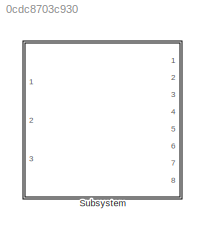
MODEL slx_0cdc8703c930
KIND library
CONFIG AbsTol = auto
CONFIG EnableMultiTasking = off
CONFIG FixedStep = auto
CONFIG MaxStep = auto
CONFIG MinStep = auto
CONFIG RelTol = 1e-3
CONFIG SampleTimeConstraint = Unconstrained
CONFIG SolverName = VariableStepAuto
CONFIG StartTime = 0.0
CONFIG StopTime = 10.0
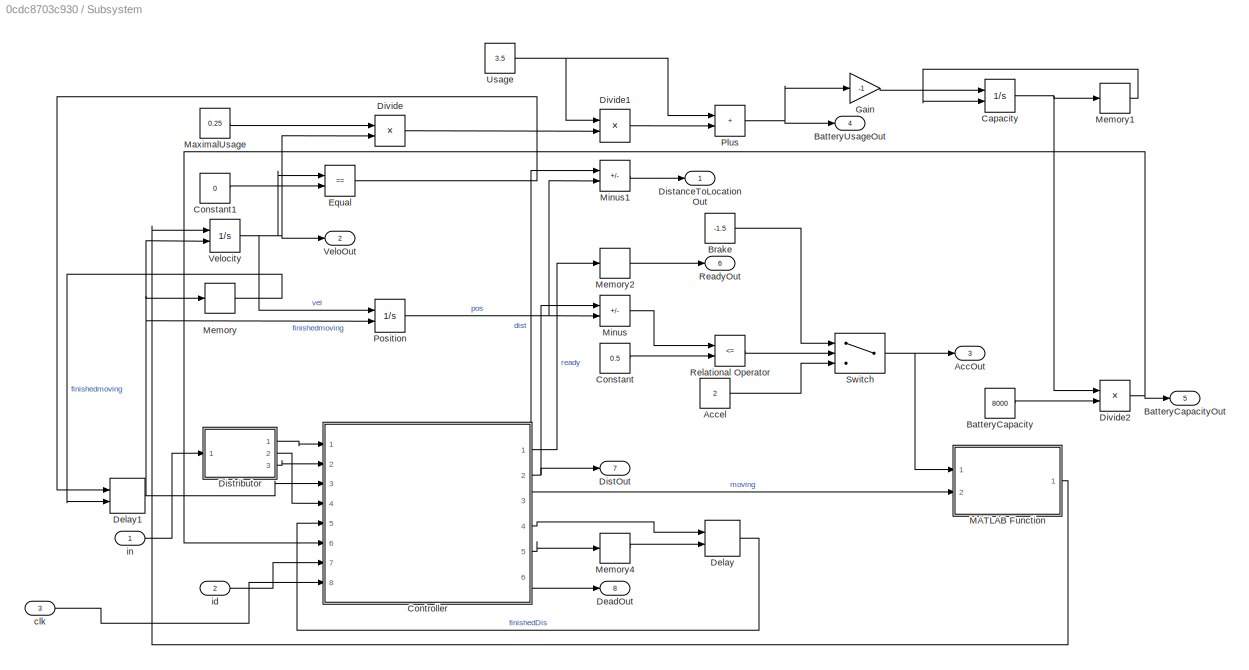
BLOCK [SubSystem] Subsystem
  Ports = [3, 8]
  RequestExecContextInheritance = off
BLOCK [Outport] Subsystem/AccOut
  Port = 3
BLOCK [Constant] Subsystem/Accel
  NameLocation = left
  Value = 2
BLOCK [Constant] Subsystem/BatteryCapacity
  Value = 8000
BLOCK [Outport] Subsystem/BatteryCapacityOut
  Port = 5
BLOCK [Outport] Subsystem/BatteryUsageOut
  Port = 4
BLOCK [Constant] Subsystem/Brake
  NameLocation = left
  Value = -1.5
BLOCK [Integrator] Subsystem/Capacity
  ExternalReset = rising
  InitialCondition = 8000
  LowerSaturationLimit = 0
  Ports = [2, 1]
BLOCK [Constant] Subsystem/Constant
  Value = 0.5
BLOCK [Constant] Subsystem/Constant1
  Value = 0
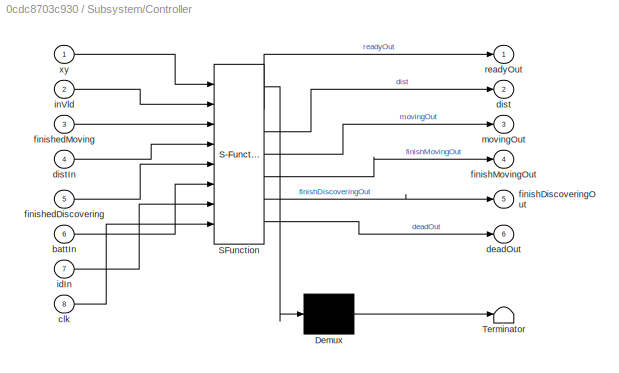
BLOCK [SubSystem] Subsystem/Controller
  ErrorFcn = Stateflow.Translate.translate
  PermitHierarchicalResolution = ExplicitOnly
  Ports = [8, 6]
  RequestExecContextInheritance = off
  SFBlockType = MATLAB Function
  TreatAsAtomicUnit = on
BLOCK [Demux] Subsystem/Controller/ Demux 
  Outputs = 1
  Ports = [1, 1]
BLOCK [S-Function] Subsystem/Controller/ SFunction 
  EnableBusSupport = on
  FunctionName = sf_sfun
  PortCounts = [8 7]
  Ports = [8, 7]
  SFcnIsStateOwnerBlock = off
  SFunctionDeploymentMode = off
  Tag = Stateflow S-Function 3
BLOCK [Terminator] Subsystem/Controller/ Terminator 
BLOCK [Inport] Subsystem/Controller/battIn
  Port = 6
BLOCK [Inport] Subsystem/Controller/clk
  Port = 8
BLOCK [Outport] Subsystem/Controller/deadOut
  Port = 6
BLOCK [Outport] Subsystem/Controller/dist
  Port = 2
BLOCK [Inport] Subsystem/Controller/distIn
  Port = 4
BLOCK [Outport] Subsystem/Controller/finishDiscoveringOut
  Port = 5
BLOCK [Outport] Subsystem/Controller/finishMovingOut
  Port = 4
BLOCK [Inport] Subsystem/Controller/finishedDiscovering
  Port = 5
BLOCK [Inport] Subsystem/Controller/finishedMoving
  Port = 3
BLOCK [Inport] Subsystem/Controller/idIn
  Port = 7
BLOCK [Inport] Subsystem/Controller/inVld
  Port = 2
BLOCK [Outport] Subsystem/Controller/movingOut
  Port = 3
BLOCK [Outport] Subsystem/Controller/readyOut
BLOCK [Inport] Subsystem/Controller/xy
BLOCK [Outport] Subsystem/DeadOut
  Port = 8
BLOCK [Delay] Subsystem/Delay
  DelayLength = 5
  ExternalReset = Rising
  InitialCondition = 0
  InputPortMap = u0,r5
  Ports = [2, 1]
BLOCK [Delay] Subsystem/Delay1
  DelayLength = 1
  ExternalReset = Rising
  InputPortMap = u0,r5
  Ports = [2, 1]
BLOCK [Outport] Subsystem/DistOut
  Port = 7
BLOCK [Outport] Subsystem/DistanceToLocationOut
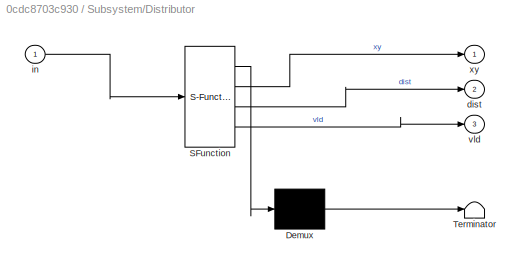
BLOCK [SubSystem] Subsystem/Distributor
  ErrorFcn = Stateflow.Translate.translate
  PermitHierarchicalResolution = ExplicitOnly
  Ports = [1, 3]
  RequestExecContextInheritance = off
  SFBlockType = MATLAB Function
  TreatAsAtomicUnit = on
BLOCK [Demux] Subsystem/Distributor/ Demux 
  Outputs = 1
  Ports = [1, 1]
BLOCK [S-Function] Subsystem/Distributor/ SFunction 
  EnableBusSupport = on
  FunctionName = sf_sfun
  PortCounts = [1 4]
  Ports = [1, 4]
  SFcnIsStateOwnerBlock = off
  SFunctionDeploymentMode = off
  Tag = Stateflow S-Function 1
BLOCK [Terminator] Subsystem/Distributor/ Terminator 
BLOCK [Outport] Subsystem/Distributor/dist
  Port = 2
BLOCK [Inport] Subsystem/Distributor/in
BLOCK [Outport] Subsystem/Distributor/vld
  Port = 3
BLOCK [Outport] Subsystem/Distributor/xy
BLOCK [Product] Subsystem/Divide
  Inputs = **
  Ports = [2, 1]
  RndMeth = Round
BLOCK [Product] Subsystem/Divide1
  Inputs = **
  Ports = [2, 1]
BLOCK [Product] Subsystem/Divide2
  Inputs = */
  Ports = [2, 1]
BLOCK [RelationalOperator] Subsystem/Equal
  InputSameDT = off
  Operator = ==
  OutDataTypeStr = boolean
  Ports = [2, 1]
  RndMeth = Simplest
BLOCK [Gain] Subsystem/Gain
  Gain = -1
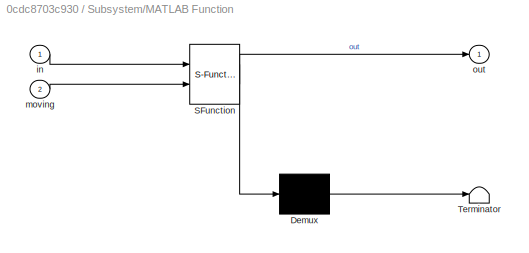
BLOCK [SubSystem] Subsystem/MATLAB Function
  ErrorFcn = Stateflow.Translate.translate
  PermitHierarchicalResolution = ExplicitOnly
  Ports = [2, 1]
  RequestExecContextInheritance = off
  SFBlockType = MATLAB Function
  TreatAsAtomicUnit = on
BLOCK [Demux] Subsystem/MATLAB Function/ Demux 
  Outputs = 1
  Ports = [1, 1]
BLOCK [S-Function] Subsystem/MATLAB Function/ SFunction 
  EnableBusSupport = on
  FunctionName = sf_sfun
  PortCounts = [2 2]
  Ports = [2, 2]
  SFcnIsStateOwnerBlock = off
  SFunctionDeploymentMode = off
  Tag = Stateflow S-Function 8
BLOCK [Terminator] Subsystem/MATLAB Function/ Terminator 
BLOCK [Inport] Subsystem/MATLAB Function/in
BLOCK [Inport] Subsystem/MATLAB Function/moving
  Port = 2
BLOCK [Outport] Subsystem/MATLAB Function/out
BLOCK [Constant] Subsystem/MaximalUsage
  Value = 0.25
BLOCK [Memory] Subsystem/Memory
  InheritSampleTime = on
BLOCK [Memory] Subsystem/Memory1
BLOCK [Memory] Subsystem/Memory2
BLOCK [Memory] Subsystem/Memory4
BLOCK [Sum] Subsystem/Minus
  IconShape = rectangular
  Inputs = +-
  Ports = [2, 1]
BLOCK [Sum] Subsystem/Minus1
  IconShape = rectangular
  Inputs = +-
  Ports = [2, 1]
BLOCK [Sum] Subsystem/Plus
  IconShape = rectangular
  Ports = [2, 1]
BLOCK [Integrator] Subsystem/Position
  ExternalReset = rising
  Ports = [2, 1]
BLOCK [Outport] Subsystem/ReadyOut
  Port = 6
BLOCK [RelationalOperator] Subsystem/Relational Operator
  InputSameDT = off
  Operator = <=
  OutDataTypeStr = boolean
  Ports = [2, 1]
  RndMeth = Simplest
BLOCK [Switch] Subsystem/Switch
  Criteria = u2 > Threshold
  InputSameDT = off
  SaturateOnIntegerOverflow = off
BLOCK [Constant] Subsystem/Usage
  Value = 3.5
BLOCK [Outport] Subsystem/VeloOut
  Port = 2
BLOCK [Integrator] Subsystem/Velocity
  ExternalReset = rising
  LimitOutput = on
  LowerSaturationLimit = 0
  Ports = [2, 1]
  UpperSaturationLimit = 1
BLOCK [Inport] Subsystem/clk
  Port = 3
BLOCK [Inport] Subsystem/id
  Port = 2
BLOCK [Inport] Subsystem/in
LINE Subsystem/Accel:1 -> Subsystem/Switch:3
LINE Subsystem/BatteryCapacity:1 -> Subsystem/Divide2:2
LINE Subsystem/Brake:1 -> Subsystem/Switch:1
NET Subsystem/Capacity:1 -> Subsystem/Divide2:1, Subsystem/Memory1:1
LINE Subsystem/Constant1:1 -> Subsystem/Equal:2
LINE Subsystem/Constant:1 -> Subsystem/Relational Operator:2
LINE Subsystem/Controller:1 -> Subsystem/Memory2:1
NET Subsystem/Controller:2 -> Subsystem/DistOut:1, Subsystem/Minus1:1, Subsystem/Minus:1
LINE Subsystem/Controller:3 -> Subsystem/MATLAB Function:2
LINE Subsystem/Controller:4 -> Subsystem/Delay:1
LINE Subsystem/Controller:5 -> Subsystem/Memory4:1
LINE Subsystem/Controller:6 -> Subsystem/DeadOut:1
NET Subsystem/Delay1:1 -> Subsystem/Controller:3, Subsystem/Memory:1, Subsystem/Position:2, Subsystem/Velocity:2
LINE Subsystem/Delay:1 -> Subsystem/Controller:5
LINE Subsystem/Distributor:1 -> Subsystem/Controller:1
LINE Subsystem/Distributor:2 -> Subsystem/Controller:4
LINE Subsystem/Distributor:3 -> Subsystem/Controller:2
LINE Subsystem/Divide1:1 -> Subsystem/Plus:2
NET Subsystem/Divide2:1 -> Subsystem/BatteryCapacityOut:1, Subsystem/Controller:6
LINE Subsystem/Divide:1 -> Subsystem/Divide1:2
LINE Subsystem/Equal:1 -> Subsystem/Delay1:1
LINE Subsystem/Gain:1 -> Subsystem/Capacity:1
LINE Subsystem/MATLAB Function:1 -> Subsystem/Velocity:1
LINE Subsystem/MaximalUsage:1 -> Subsystem/Divide:1
LINE Subsystem/Memory1:1 -> Subsystem/Capacity:2
LINE Subsystem/Memory2:1 -> Subsystem/ReadyOut:1
LINE Subsystem/Memory4:1 -> Subsystem/Delay:2
LINE Subsystem/Memory:1 -> Subsystem/Delay1:2
LINE Subsystem/Minus1:1 -> Subsystem/DistanceToLocationOut:1
LINE Subsystem/Minus:1 -> Subsystem/Relational Operator:1
NET Subsystem/Plus:1 -> Subsystem/BatteryUsageOut:1, Subsystem/Gain:1
NET Subsystem/Position:1 -> Subsystem/Minus1:2, Subsystem/Minus:2
LINE Subsystem/Relational Operator:1 -> Subsystem/Switch:2
NET Subsystem/Switch:1 -> Subsystem/AccOut:1, Subsystem/MATLAB Function:1
NET Subsystem/Usage:1 -> Subsystem/Divide1:1, Subsystem/Plus:1
NET Subsystem/Velocity:1 -> Subsystem/Divide:2, Subsystem/Equal:1, Subsystem/Position:1, Subsystem/VeloOut:1
LINE Subsystem/clk:1 -> Subsystem/Controller:8
LINE Subsystem/id:1 -> Subsystem/Controller:7
LINE Subsystem/in:1 -> Subsystem/Distributor:1
note: NET lines group one-source signal fan-out (src -> all destinations, sorted); 1:1 wires keep LINE
CHART Subsystem/Distributor states=1 transitions=1
  STATE_LABEL 'eML_blk_kernel()'
  STATE_LABEL 'SCRIPT:\nfunction [xy, dist, vld] = fcn(in)\n    %distributes an input signal to multiple output signals\n    xy = [-1 -1];\n    dist = -1;\n    vld = 0;\n    \n    xy = [in(1) in(2)];\n    dist = in(3);\n    vld = in(4);\nend'
CHART Subsystem/Controller states=1 transitions=1
  STATE_LABEL 'eML_blk_kernel()'
  STATE_LABEL 'SCRIPT:\nfunction [readyOut, dist, movingOut, finishMovingOut, finishDiscoveringOut, deadOut] = fcn(xy, inVld, finishedMoving, distIn, finishedDiscovering, battIn, idIn, clk)\n    persistent distance\n    persistent ready\n    persistent moving\n    persistent ignoreMoving\n    persistent ignoreDiscovering\n    persistent discovering\n    persistent terminate\n    persistent dead\n    \n    %init persistent ...<+2153ch>'
CHART Subsystem/MATLAB Function states=1 transitions=1
  STATE_LABEL 'eML_blk_kernel()'
  STATE_LABEL 'SCRIPT:\nfunction out = fcn(in, moving)\n    %prevents drone from moving if it is not supposed to move\n    out = 0;\n    if moving == 1\n        out = in;\n    end\nend\n'
CHART  states=0 transitions=0
CHART  states=0 transitions=0
CHART  states=0 transitions=0
